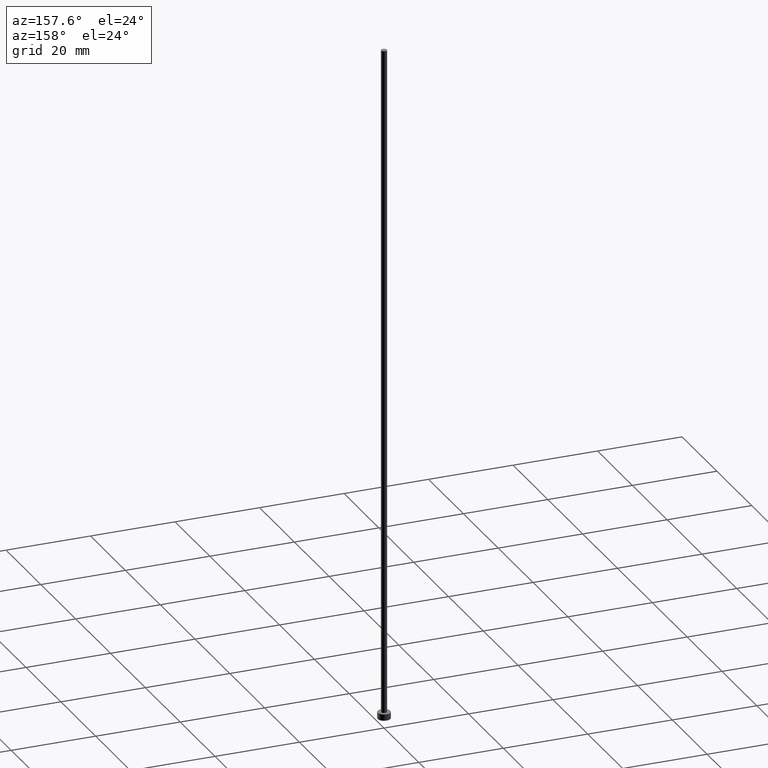
[diagram: clean part render]
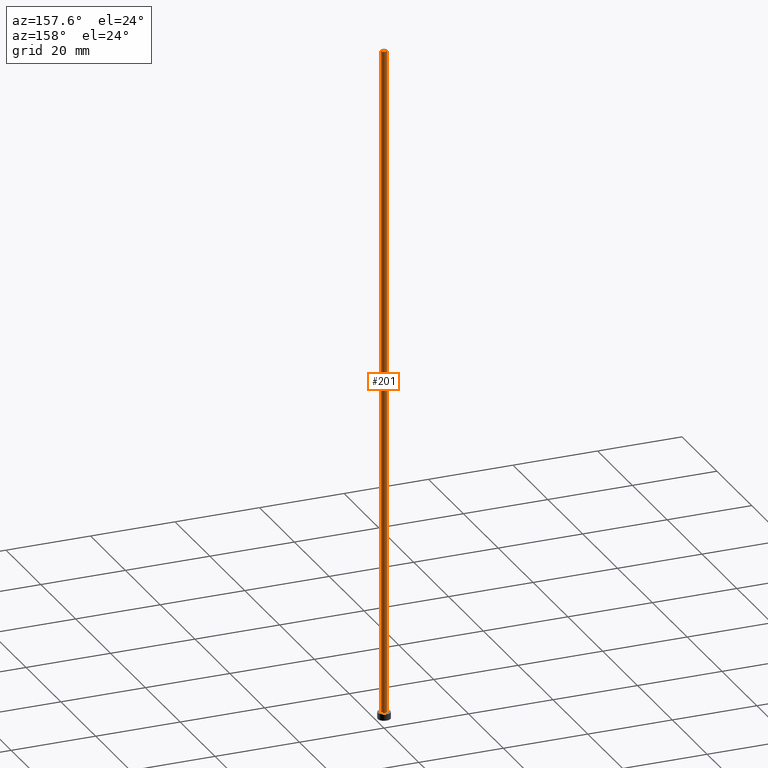
[diagram: same view with one face highlighted and labeled with its STEP entity id]
A machine part, auxiliary view. The second image highlights one B-rep face of the part: STEP entity #201.
In plain terms, the highlighted cylindrical surface (edge-blend (fillet) strip) has radius 0.7 mm, axis along (-0, -0, -1).
Its self-contained STEP definition (entity closure, byte-faithful):
#1 = CARTESIAN_POINT ( 'NONE',  ( 0.000000000000000000, 0.000000000000000000, 160.0000000000000000 ) ) ;
#6 = EDGE_CURVE ( 'NONE', #149, #45, #29, .T. ) ;
#11 = CARTESIAN_POINT ( 'NONE',  ( -0.6999999999999999556, 0.000000000000000000, 160.0000000000000000 ) ) ;
#13 = VERTEX_POINT ( 'NONE', #11 ) ;
#16 = DIRECTION ( 'NONE',  ( 0.000000000000000000, 0.000000000000000000, 1.000000000000000000 ) ) ;
#20 = AXIS2_PLACEMENT_3D ( 'NONE', #32, #16, #134 ) ;
#22 = DIRECTION ( 'NONE',  ( -1.000000000000000000, 0.000000000000000000, 0.000000000000000000 ) ) ;
#24 = DIRECTION ( 'NONE',  ( -0.000000000000000000, -0.000000000000000000, -1.000000000000000000 ) ) ;
#25 = ORIENTED_EDGE ( 'NONE', *, *, #6, .T. ) ;
#29 = LINE ( 'NONE', #199, #175 ) ;
#30 = CARTESIAN_POINT ( 'NONE',  ( 0.6999999999999999556, 8.572527594031471957E-17, 160.0000000000000000 ) ) ;
#32 = CARTESIAN_POINT ( 'NONE',  ( 0.000000000000000000, 0.000000000000000000, 1.500000000000000000 ) ) ;
#43 = LINE ( 'NONE', #101, #129 ) ;
#44 = DIRECTION ( 'NONE',  ( -0.000000000000000000, -0.000000000000000000, -1.000000000000000000 ) ) ;
#45 = VERTEX_POINT ( 'NONE', #235 ) ;
#66 = CARTESIAN_POINT ( 'NONE',  ( 0.000000000000000000, 0.000000000000000000, 160.0000000000000000 ) ) ;
#67 = VERTEX_POINT ( 'NONE', #194 ) ;
#92 = EDGE_CURVE ( 'NONE', #13, #67, #43, .T. ) ;
#101 = CARTESIAN_POINT ( 'NONE',  ( -0.6999999999999999556, 0.000000000000000000, 160.0000000000000000 ) ) ;
#107 = ORIENTED_EDGE ( 'NONE', *, *, #92, .F. ) ;
#118 = CIRCLE ( 'NONE', #148, 0.6999999999999999556 ) ;
#122 = CYLINDRICAL_SURFACE ( 'NONE', #136, 0.6999999999999999556 ) ;
#129 = VECTOR ( 'NONE', #24, 1000.000000000000000 ) ;
#134 = DIRECTION ( 'NONE',  ( 1.000000000000000000, 0.000000000000000000, 0.000000000000000000 ) ) ;
#136 = AXIS2_PLACEMENT_3D ( 'NONE', #1, #216, #22 ) ;
#140 = DIRECTION ( 'NONE',  ( 1.000000000000000000, 0.000000000000000000, 0.000000000000000000 ) ) ;
#144 = ORIENTED_EDGE ( 'NONE', *, *, #171, .F. ) ;
#145 = ORIENTED_EDGE ( 'NONE', *, *, #239, .T. ) ;
#148 = AXIS2_PLACEMENT_3D ( 'NONE', #66, #156, #140 ) ;
#149 = VERTEX_POINT ( 'NONE', #30 ) ;
#156 = DIRECTION ( 'NONE',  ( 0.000000000000000000, 0.000000000000000000, 1.000000000000000000 ) ) ;
#171 = EDGE_CURVE ( 'NONE', #149, #13, #118, .T. ) ;
#174 = FACE_OUTER_BOUND ( 'NONE', #205, .T. ) ;
#175 = VECTOR ( 'NONE', #44, 1000.000000000000000 ) ;
#194 = CARTESIAN_POINT ( 'NONE',  ( -0.6999999999999999556, 0.000000000000000000, 1.500000000000000000 ) ) ;
#199 = CARTESIAN_POINT ( 'NONE',  ( 0.6999999999999999556, 8.572527594031471957E-17, 160.0000000000000000 ) ) ;
#201 = ADVANCED_FACE ( 'NONE', ( #174 ), #122, .T. ) ;
#205 = EDGE_LOOP ( 'NONE', ( #144, #25, #145, #107 ) ) ;
#213 = CIRCLE ( 'NONE', #20, 0.6999999999999999556 ) ;
#216 = DIRECTION ( 'NONE',  ( -0.000000000000000000, -0.000000000000000000, -1.000000000000000000 ) ) ;
#235 = CARTESIAN_POINT ( 'NONE',  ( 0.6999999999999999556, 8.572527594031471957E-17, 1.500000000000000000 ) ) ;
#239 = EDGE_CURVE ( 'NONE', #45, #67, #213, .T. ) ;